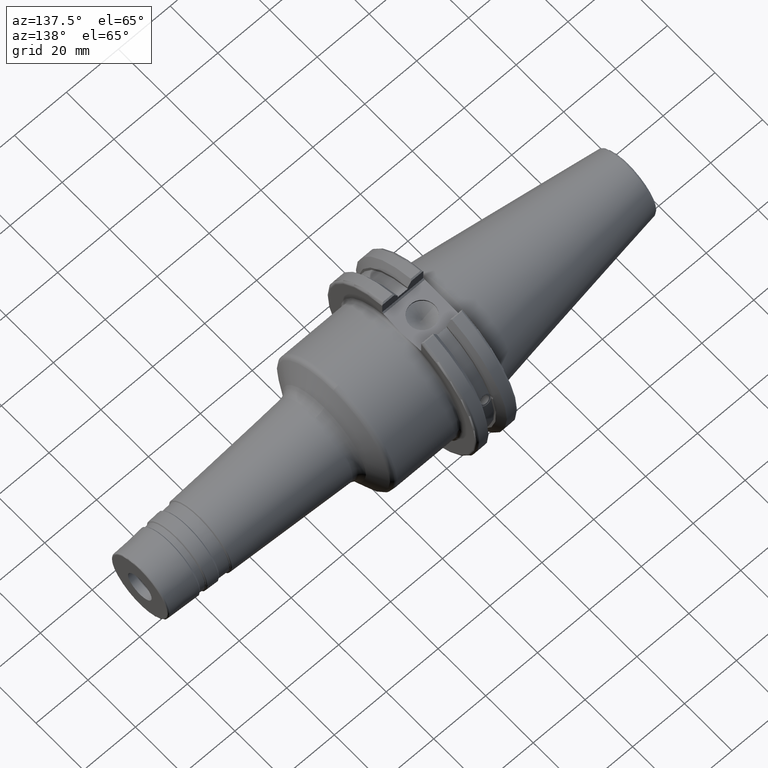
[diagram: clean part render]
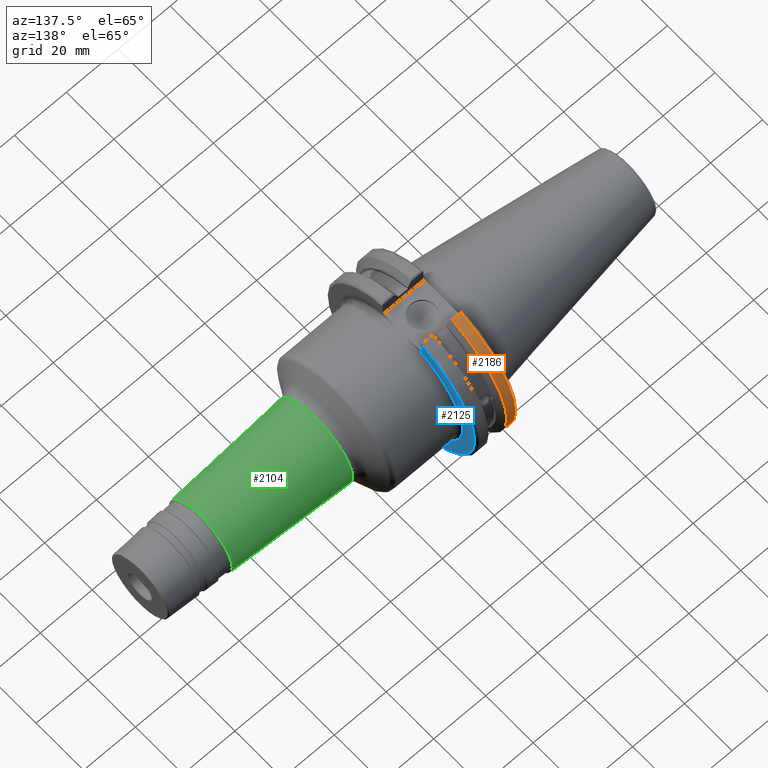
[diagram: same view with three faces highlighted in distinct colors, each labeled with its STEP entity id]
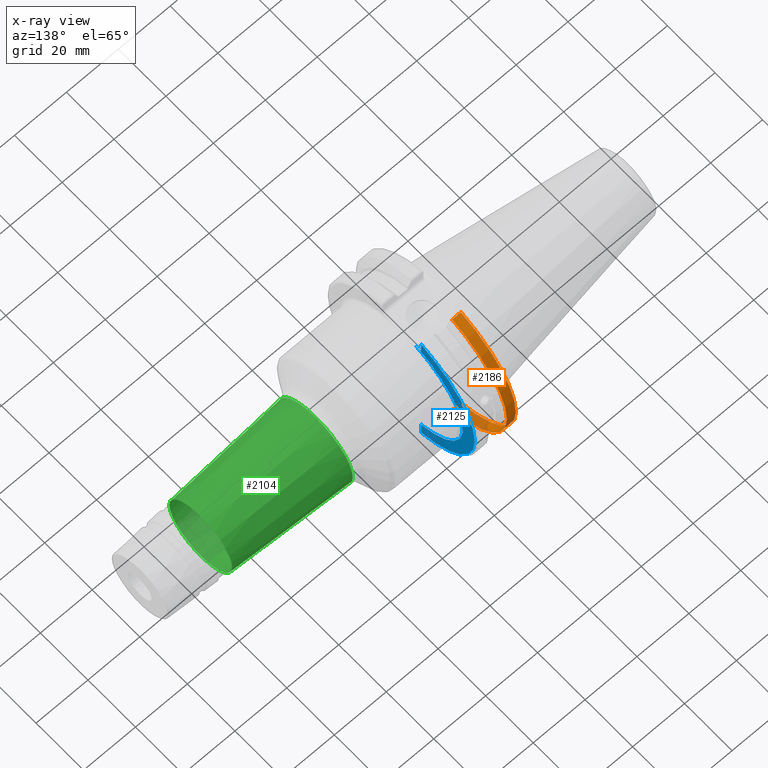
[diagram: x-ray of the same camera — body ghosted, the three highlighted faces saturated]
A machine part, auxiliary view with three faces highlighted in distinct colors.
The next image is the same camera in x-ray (body ghosted, the three faces saturated) — at least one of them is partly hidden behind the body in this view.
Their STEP definitions:

[orange] entity #2186 — the highlighted cylindrical surface (partial cylindrical patch) has radius 31.75 mm, axis along (1, 0, 0).
#178=CYLINDRICAL_SURFACE('',#2494,31.75);
#275=FACE_OUTER_BOUND('',#396,.T.);
#396=EDGE_LOOP('',(#1987,#1988,#1989,#1990));
#496=LINE('',#4175,#597);
#509=LINE('',#4232,#610);
#597=VECTOR('',#3104,10.);
#610=VECTOR('',#3165,10.);
#740=CIRCLE('',#2418,31.75);
#766=CIRCLE('',#2468,31.75);
#955=VERTEX_POINT('',#3894);
#956=VERTEX_POINT('',#3898);
#1011=VERTEX_POINT('',#4149);
#1012=VERTEX_POINT('',#4158);
#1251=EDGE_CURVE('',#955,#956,#740,.T.);
#1332=EDGE_CURVE('',#1011,#1012,#766,.T.);
#1335=EDGE_CURVE('',#1012,#955,#496,.T.);
#1361=EDGE_CURVE('',#956,#1011,#509,.T.);
#1987=ORIENTED_EDGE('',*,*,#1332,.F.);
#1988=ORIENTED_EDGE('',*,*,#1361,.F.);
#1989=ORIENTED_EDGE('',*,*,#1251,.F.);
#1990=ORIENTED_EDGE('',*,*,#1335,.F.);
#2186=ADVANCED_FACE('',(#275),#178,.T.);
#2418=AXIS2_PLACEMENT_3D('',#3899,#2968,#2969);
#2468=AXIS2_PLACEMENT_3D('',#4159,#3100,#3101);
#2494=AXIS2_PLACEMENT_3D('',#4233,#3166,#3167);
#2968=DIRECTION('center_axis',(1.,0.,0.));
#2969=DIRECTION('ref_axis',(0.,0.,-1.));
#3100=DIRECTION('center_axis',(-1.,0.,0.));
#3101=DIRECTION('ref_axis',(0.,1.,1.60812264967664E-16));
#3104=DIRECTION('',(1.,0.,0.));
#3165=DIRECTION('',(-1.,0.,0.));
#3166=DIRECTION('center_axis',(1.,0.,0.));
#3167=DIRECTION('ref_axis',(0.,1.,0.));
#3894=CARTESIAN_POINT('',(7.60793323092436,8.67204822802685,-30.5427254764662));
#3898=CARTESIAN_POINT('',(7.60793323092436,8.67204822802685,30.5427254764662));
#3899=CARTESIAN_POINT('Origin',(7.60793323092436,0.,0.));
#4149=CARTESIAN_POINT('',(4.175,8.67204822802685,30.5427254764662));
#4158=CARTESIAN_POINT('',(4.175,8.67204822802685,-30.5427254764662));
#4159=CARTESIAN_POINT('Origin',(4.175,0.,0.));
#4175=CARTESIAN_POINT('',(5.39146661546218,8.67204822802685,-30.5427254764662));
#4232=CARTESIAN_POINT('',(5.39146661546218,8.67204822802685,30.5427254764662));
#4233=CARTESIAN_POINT('Origin',(5.39146661546218,0.,0.));

[blue] entity #2125 — the highlighted planar face has unit normal (1, 0, 0).
#51=PLANE('',#2347);
#214=FACE_OUTER_BOUND('',#325,.T.);
#325=EDGE_LOOP('',(#1608,#1609,#1610,#1611,#1612,#1613));
#436=LINE('',#3595,#537);
#437=LINE('',#3599,#538);
#438=LINE('',#3601,#539);
#439=LINE('',#3602,#540);
#537=VECTOR('',#2800,10.);
#538=VECTOR('',#2803,10.);
#539=VECTOR('',#2804,10.);
#540=VECTOR('',#2805,10.);
#708=CIRCLE('',#2344,25.75);
#710=CIRCLE('',#2348,30.75);
#879=VERTEX_POINT('',#3548);
#881=VERTEX_POINT('',#3571);
#886=VERTEX_POINT('',#3594);
#887=VERTEX_POINT('',#3596);
#888=VERTEX_POINT('',#3598);
#889=VERTEX_POINT('',#3600);
#1154=EDGE_CURVE('',#881,#879,#708,.T.);
#1160=EDGE_CURVE('',#881,#886,#436,.T.);
#1161=EDGE_CURVE('',#887,#886,#710,.T.);
#1162=EDGE_CURVE('',#887,#888,#437,.T.);
#1163=EDGE_CURVE('',#889,#888,#438,.T.);
#1164=EDGE_CURVE('',#889,#879,#439,.T.);
#1608=ORIENTED_EDGE('',*,*,#1154,.F.);
#1609=ORIENTED_EDGE('',*,*,#1160,.T.);
#1610=ORIENTED_EDGE('',*,*,#1161,.F.);
#1611=ORIENTED_EDGE('',*,*,#1162,.T.);
#1612=ORIENTED_EDGE('',*,*,#1163,.F.);
#1613=ORIENTED_EDGE('',*,*,#1164,.T.);
#2125=ADVANCED_FACE('',(#214),#51,.T.);
#2344=AXIS2_PLACEMENT_3D('',#3582,#2788,#2789);
#2347=AXIS2_PLACEMENT_3D('',#3593,#2798,#2799);
#2348=AXIS2_PLACEMENT_3D('',#3597,#2801,#2802);
#2788=DIRECTION('center_axis',(1.,0.,0.));
#2789=DIRECTION('ref_axis',(0.,6.12323399573677E-17,1.));
#2798=DIRECTION('center_axis',(1.,0.,0.));
#2799=DIRECTION('ref_axis',(0.,0.,-1.));
#2800=DIRECTION('',(0.,0.,-1.));
#2801=DIRECTION('center_axis',(-1.,0.,0.));
#2802=DIRECTION('ref_axis',(0.,1.,-6.12323399573677E-17));
#2803=DIRECTION('',(0.,0.,-1.));
#2804=DIRECTION('',(0.,0.707106781186549,0.707106781186546));
#2805=DIRECTION('',(0.,-1.,0.));
#3548=CARTESIAN_POINT('',(19.05,6.16948133962654,25.));
#3571=CARTESIAN_POINT('',(19.05,8.19,-24.4128326910254));
#3582=CARTESIAN_POINT('Origin',(19.05,0.,0.));
#3593=CARTESIAN_POINT('Origin',(19.05,0.,0.));
#3594=CARTESIAN_POINT('',(19.05,8.19,-29.6392712461019));
#3595=CARTESIAN_POINT('',(19.05,8.19,-11.3));
#3596=CARTESIAN_POINT('',(19.05,8.19,29.6392712461019));
#3597=CARTESIAN_POINT('Origin',(19.05,0.,0.));
#3598=CARTESIAN_POINT('',(19.05,8.19,25.5));
#3599=CARTESIAN_POINT('',(19.05,8.19,12.5));
#3600=CARTESIAN_POINT('',(19.05,7.69,25.));
#3601=CARTESIAN_POINT('',(19.05,-0.35750000000001,16.9525));
#3602=CARTESIAN_POINT('',(19.05,0.,25.));

[green] entity #2104 — the highlighted conical surface has half-angle 3 deg.
#193=FACE_OUTER_BOUND('',#303,.T.);
#303=EDGE_LOOP('',(#1448,#1449,#1450,#1451,#1452,#1453,#1454,#1455));
#423=LINE('',#3405,#524);
#524=VECTOR('',#2615,14.4434350517363);
#640=CIRCLE('',#2256,15.5548801268603);
#641=CIRCLE('',#2257,15.5548801268603);
#642=CIRCLE('',#2258,15.5548801268603);
#643=CIRCLE('',#2260,13.2304120250298);
#644=CIRCLE('',#2261,13.2304120250298);
#645=CIRCLE('',#2262,13.2304120250298);
#820=VERTEX_POINT('',#3392);
#821=VERTEX_POINT('',#3394);
#822=VERTEX_POINT('',#3396);
#823=VERTEX_POINT('',#3400);
#824=VERTEX_POINT('',#3401);
#825=VERTEX_POINT('',#3403);
#1074=EDGE_CURVE('',#820,#821,#640,.T.);
#1075=EDGE_CURVE('',#821,#822,#641,.T.);
#1076=EDGE_CURVE('',#822,#820,#642,.T.);
#1077=EDGE_CURVE('',#823,#824,#643,.T.);
#1078=EDGE_CURVE('',#825,#823,#644,.T.);
#1079=EDGE_CURVE('',#825,#822,#423,.T.);
#1080=EDGE_CURVE('',#824,#825,#645,.T.);
#1448=ORIENTED_EDGE('',*,*,#1077,.F.);
#1449=ORIENTED_EDGE('',*,*,#1078,.F.);
#1450=ORIENTED_EDGE('',*,*,#1079,.T.);
#1451=ORIENTED_EDGE('',*,*,#1075,.F.);
#1452=ORIENTED_EDGE('',*,*,#1074,.F.);
#1453=ORIENTED_EDGE('',*,*,#1076,.F.);
#1454=ORIENTED_EDGE('',*,*,#1079,.F.);
#1455=ORIENTED_EDGE('',*,*,#1080,.F.);
#2074=CONICAL_SURFACE('',#2259,14.4434350517363,0.0523598775598296);
#2104=ADVANCED_FACE('',(#193),#2074,.T.);
#2256=AXIS2_PLACEMENT_3D('',#3395,#2603,#2604);
#2257=AXIS2_PLACEMENT_3D('',#3397,#2605,#2606);
#2258=AXIS2_PLACEMENT_3D('',#3398,#2607,#2608);
#2259=AXIS2_PLACEMENT_3D('',#3399,#2609,#2610);
#2260=AXIS2_PLACEMENT_3D('',#3402,#2611,#2612);
#2261=AXIS2_PLACEMENT_3D('',#3404,#2613,#2614);
#2262=AXIS2_PLACEMENT_3D('',#3406,#2616,#2617);
#2603=DIRECTION('center_axis',(-1.,0.,0.));
#2604=DIRECTION('ref_axis',(0.,-1.,3.06161699786838E-17));
#2605=DIRECTION('center_axis',(-1.,0.,0.));
#2606=DIRECTION('ref_axis',(0.,-1.,3.06161699786838E-17));
#2607=DIRECTION('center_axis',(-1.,0.,0.));
#2608=DIRECTION('ref_axis',(0.,-1.,3.06161699786838E-17));
#2609=DIRECTION('center_axis',(-1.,0.,0.));
#2610=DIRECTION('ref_axis',(0.,1.,0.));
#2611=DIRECTION('center_axis',(1.,0.,0.));
#2612=DIRECTION('ref_axis',(0.,-1.,3.06161699786838E-17));
#2613=DIRECTION('center_axis',(1.,0.,0.));
#2614=DIRECTION('ref_axis',(0.,-1.,3.06161699786838E-17));
#2615=DIRECTION('',(-0.998629534754574,-0.0523359562429436,-6.40930612932368E-18));
#2616=DIRECTION('center_axis',(1.,0.,0.));
#2617=DIRECTION('ref_axis',(0.,-1.,3.06161699786838E-17));
#3392=CARTESIAN_POINT('',(52.1688463908891,-1.90492341584803E-15,15.5548801268603));
#3394=CARTESIAN_POINT('',(52.1688463908891,15.5548801268603,-4.76230853962007E-15));
#3395=CARTESIAN_POINT('Origin',(52.1688463908891,0.,-2.38115426981004E-15));
#3396=CARTESIAN_POINT('',(52.1688463908891,-15.5548801268603,-1.90492341584803E-15));
#3397=CARTESIAN_POINT('Origin',(52.1688463908891,0.,-2.38115426981004E-15));
#3398=CARTESIAN_POINT('Origin',(52.1688463908891,0.,-2.38115426981004E-15));
#3399=CARTESIAN_POINT('Origin',(73.3764817902328,0.,0.));
#3400=CARTESIAN_POINT('',(96.522339968181,13.2304120250298,-8.10129086892673E-16));
#3401=CARTESIAN_POINT('',(96.522339968181,-1.62025817378534E-15,13.2304120250298));
#3402=CARTESIAN_POINT('Origin',(96.522339968181,0.,-2.02532271723168E-15));
#3403=CARTESIAN_POINT('',(96.522339968181,-13.2304120250298,-1.62025817378535E-15));
#3404=CARTESIAN_POINT('Origin',(96.522339968181,0.,-2.02532271723168E-15));
#3405=CARTESIAN_POINT('',(73.3764817902328,-14.4434350517363,-1.76881065048016E-15));
#3406=CARTESIAN_POINT('Origin',(96.522339968181,0.,-2.02532271723168E-15));